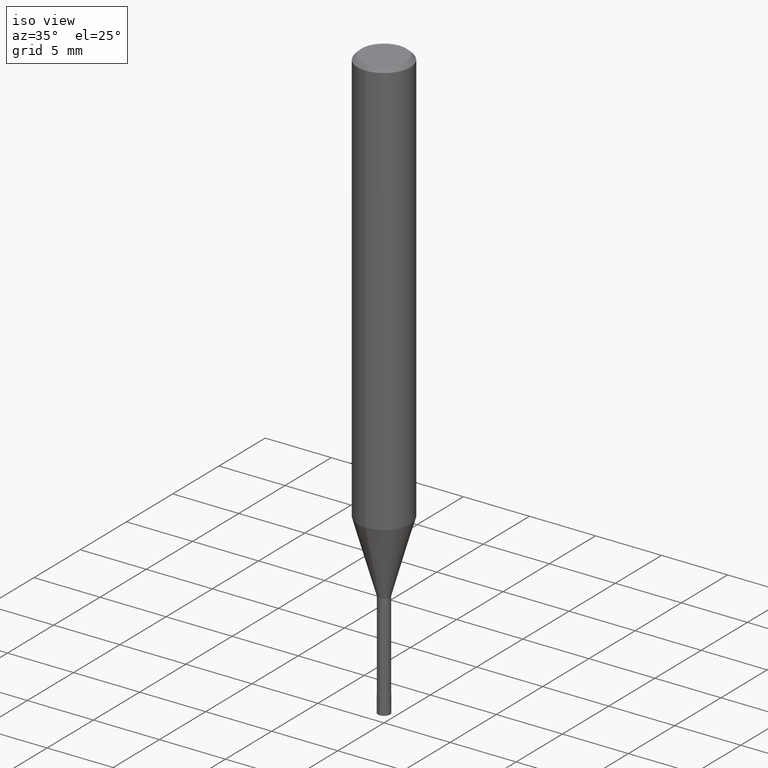
[diagram: clean part render]
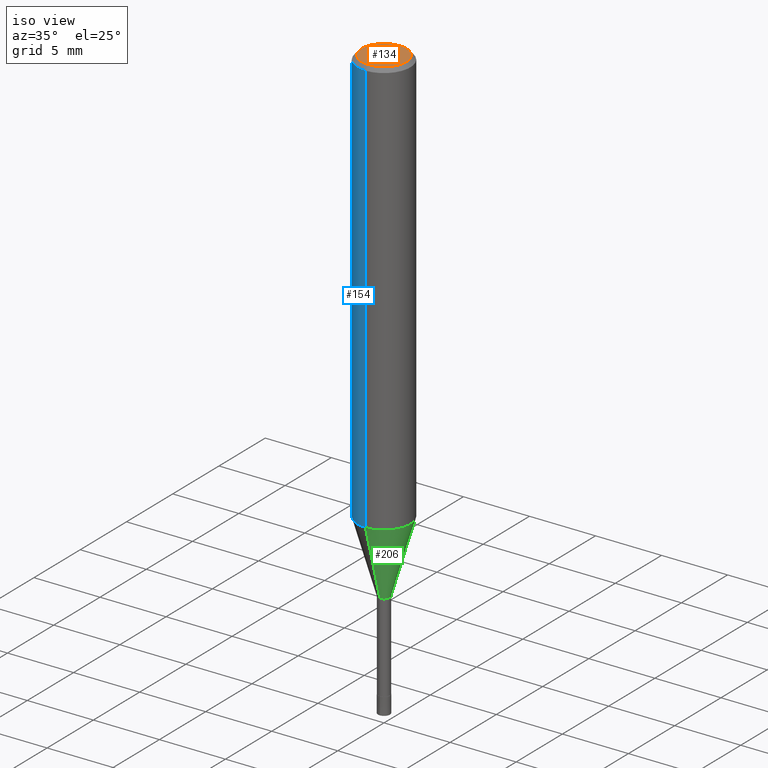
[diagram: same view with three faces highlighted in distinct colors, each labeled with its STEP entity id]
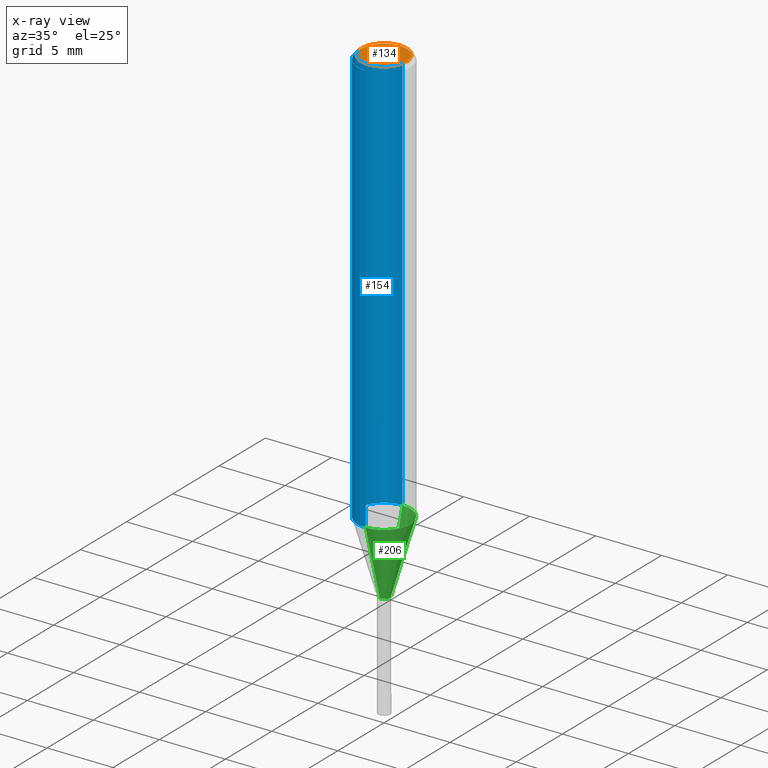
[diagram: x-ray of the same camera — body ghosted, the three highlighted faces saturated]
A machine part, iso view with three faces highlighted in distinct colors.
The next image is the same camera in x-ray (body ghosted, the three faces saturated) — at least one of them is partly hidden behind the body in this view.
Their STEP definitions:

[orange] entity #134 — the highlighted planar face has unit normal (-0, 0, 1).
#126=VERTEX_POINT('',#267);
#134=ADVANCED_FACE('',(#276),#277,.T.);
#174=EDGE_CURVE('',#126,#184,#323,.T.);
#176=EDGE_CURVE('',#184,#126,#325,.T.);
#184=VERTEX_POINT('',#333);
#267=CARTESIAN_POINT('',(2.08183080149804E-016,-1.7,0.0));
#276=FACE_OUTER_BOUND('',#433,.T.);
#277=PLANE('',#434);
#323=CIRCLE('',#490,1.7);
#325=CIRCLE('',#493,1.7);
#333=CARTESIAN_POINT('',(0.0,1.7,0.0));
#433=EDGE_LOOP('',(#597,#598));
#434=AXIS2_PLACEMENT_3D('',#599,#600,#601);
#490=AXIS2_PLACEMENT_3D('',#658,#659,#660);
#493=AXIS2_PLACEMENT_3D('',#661,#662,#663);
#597=ORIENTED_EDGE('',*,*,#176,.F.);
#598=ORIENTED_EDGE('',*,*,#174,.F.);
#599=CARTESIAN_POINT('',(0.0,0.85,0.0));
#600=DIRECTION('',(-0.0,0.0,1.0));
#601=DIRECTION('',(0.0,-1.0,0.0));
#658=CARTESIAN_POINT('',(0.0,0.0,0.0));
#659=DIRECTION('',(0.0,0.0,-1.0));
#660=DIRECTION('',(0.0,1.0,0.0));
#661=CARTESIAN_POINT('',(0.0,0.0,0.0));
#662=DIRECTION('',(0.0,0.0,-1.0));
#663=DIRECTION('',(0.0,1.0,0.0));

[blue] entity #154 — the highlighted cylindrical surface (edge-blend (fillet) strip) has radius 2 mm, axis along (-0, -0, 1).
#98=VERTEX_POINT('',#236);
#108=VERTEX_POINT('',#247);
#110=VERTEX_POINT('',#249);
#112=EDGE_CURVE('',#98,#108,#251,.T.);
#118=EDGE_CURVE('',#110,#122,#258,.T.);
#122=VERTEX_POINT('',#263);
#154=ADVANCED_FACE('',(#301),#302,.T.);
#166=EDGE_CURVE('',#110,#108,#315,.T.);
#168=EDGE_CURVE('',#122,#98,#317,.T.);
#236=CARTESIAN_POINT('',(0.0,2.0,-0.300000000000001));
#247=CARTESIAN_POINT('',(0.0,2.0,-31.56));
#249=CARTESIAN_POINT('',(2.44921270764475E-016,-2.0,-31.56));
#251=LINE('',#402,#403);
#258=LINE('',#411,#412);
#263=CARTESIAN_POINT('',(2.44921270764475E-016,-2.0,-0.300000000000001));
#301=FACE_OUTER_BOUND('',#462,.T.);
#302=CYLINDRICAL_SURFACE('',#463,2.0);
#315=CIRCLE('',#479,2.0);
#317=CIRCLE('',#482,2.0);
#402=CARTESIAN_POINT('',(-2.44921270764475E-016,2.0,-15.93));
#403=VECTOR('',#568,1.0);
#411=CARTESIAN_POINT('',(2.44921270764475E-016,-2.0,-15.93));
#412=VECTOR('',#577,1.0);
#462=EDGE_LOOP('',(#632,#633,#634,#635));
#463=AXIS2_PLACEMENT_3D('',#636,#637,#638);
#479=AXIS2_PLACEMENT_3D('',#649,#650,#651);
#482=AXIS2_PLACEMENT_3D('',#652,#653,#654);
#568=DIRECTION('',(0.0,0.0,-1.0));
#577=DIRECTION('',(-0.0,-0.0,1.0));
#632=ORIENTED_EDGE('',*,*,#112,.T.);
#633=ORIENTED_EDGE('',*,*,#166,.F.);
#634=ORIENTED_EDGE('',*,*,#118,.T.);
#635=ORIENTED_EDGE('',*,*,#168,.T.);
#636=CARTESIAN_POINT('',(0.0,0.0,-15.93));
#637=DIRECTION('',(-0.0,-0.0,1.0));
#638=DIRECTION('',(0.0,1.0,0.0));
#649=CARTESIAN_POINT('',(0.0,0.0,-31.56));
#650=DIRECTION('',(0.0,0.0,-1.0));
#651=DIRECTION('',(0.0,1.0,0.0));
#652=CARTESIAN_POINT('',(0.0,0.0,-0.300000000000001));
#653=DIRECTION('',(0.0,0.0,-1.0));
#654=DIRECTION('',(0.0,1.0,0.0));

[green] entity #206 — the highlighted conical surface has half-angle 16.001 deg.
#130=VERTEX_POINT('',#272);
#140=EDGE_CURVE('',#188,#144,#285,.T.);
#144=VERTEX_POINT('',#290);
#170=VERTEX_POINT('',#319);
#180=EDGE_CURVE('',#130,#188,#329,.T.);
#188=VERTEX_POINT('',#338);
#200=EDGE_CURVE('',#170,#130,#352,.T.);
#202=EDGE_CURVE('',#170,#144,#354,.T.);
#206=ADVANCED_FACE('',(#358),#359,.T.);
#272=CARTESIAN_POINT('',(0.0,0.43995,-37.0));
#285=LINE('',#444,#445);
#290=CARTESIAN_POINT('',(2.44915147732706E-016,-1.99995,-31.56));
#319=CARTESIAN_POINT('',(0.0,1.99995,-31.56));
#329=CIRCLE('',#498,0.43995);
#338=CARTESIAN_POINT('',(5.38765565364155E-017,-0.43995,-37.0));
#352=LINE('',#528,#529);
#354=CIRCLE('',#532,1.99995);
#358=FACE_OUTER_BOUND('',#537,.T.);
#359=CONICAL_SURFACE('',#538,1.21995,0.279270532486472);
#444=CARTESIAN_POINT('',(1.49395852134561E-016,-1.21995,-34.28));
#445=VECTOR('',#613,1.0);
#498=AXIS2_PLACEMENT_3D('',#664,#665,#666);
#528=CARTESIAN_POINT('',(-1.49395852134561E-016,1.21995,-34.28));
#529=VECTOR('',#699,1.0);
#532=AXIS2_PLACEMENT_3D('',#700,#701,#702);
#537=EDGE_LOOP('',(#707,#708,#709,#710));
#538=AXIS2_PLACEMENT_3D('',#711,#712,#713);
#613=DIRECTION('',(3.37568272216048E-017,-0.275654516377767,0.96125677506093));
#664=CARTESIAN_POINT('',(0.0,0.0,-37.0));
#665=DIRECTION('',(0.0,0.0,-1.0));
#666=DIRECTION('',(0.0,1.0,0.0));
#699=DIRECTION('',(3.37568272216048E-017,-0.275654516377767,-0.96125677506093));
#700=CARTESIAN_POINT('',(0.0,0.0,-31.56));
#701=DIRECTION('',(0.0,0.0,-1.0));
#702=DIRECTION('',(0.0,1.0,0.0));
#707=ORIENTED_EDGE('',*,*,#200,.F.);
#708=ORIENTED_EDGE('',*,*,#202,.T.);
#709=ORIENTED_EDGE('',*,*,#140,.F.);
#710=ORIENTED_EDGE('',*,*,#180,.F.);
#711=CARTESIAN_POINT('',(0.0,0.0,-34.28));
#712=DIRECTION('',(-0.0,-0.0,1.0));
#713=DIRECTION('',(0.0,1.0,0.0));